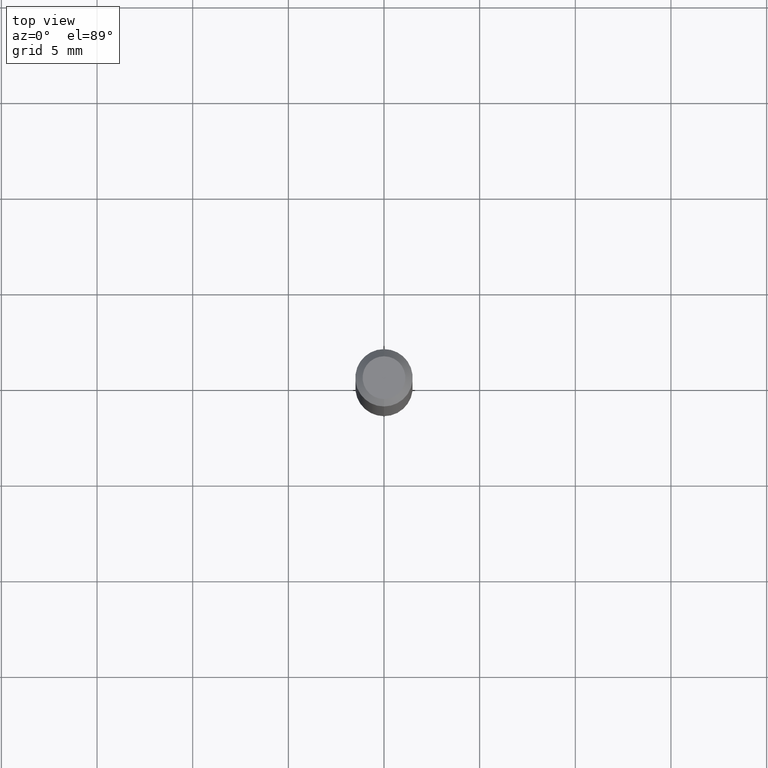
[diagram: clean part render]
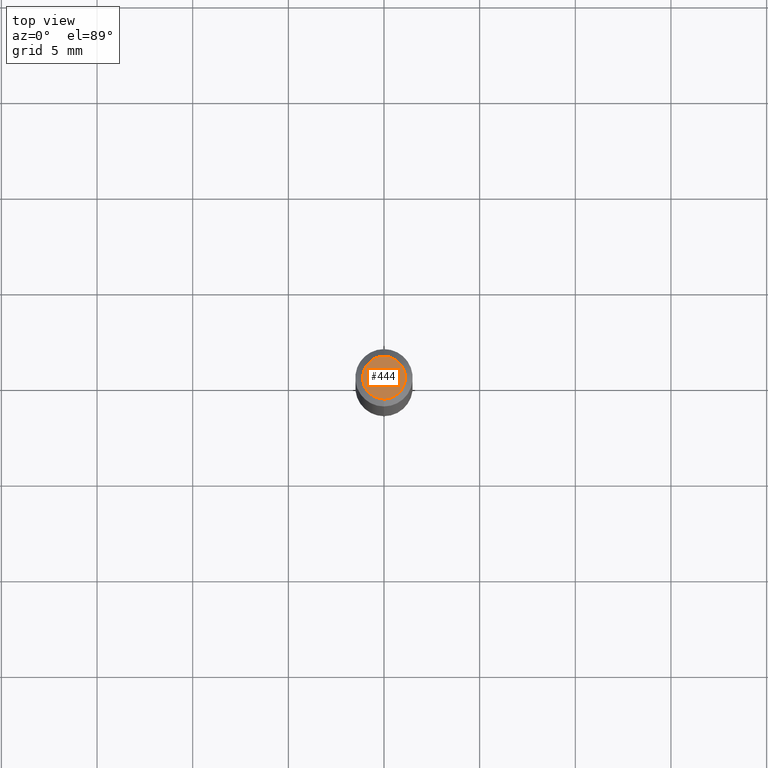
[diagram: same view with one face highlighted and labeled with its STEP entity id]
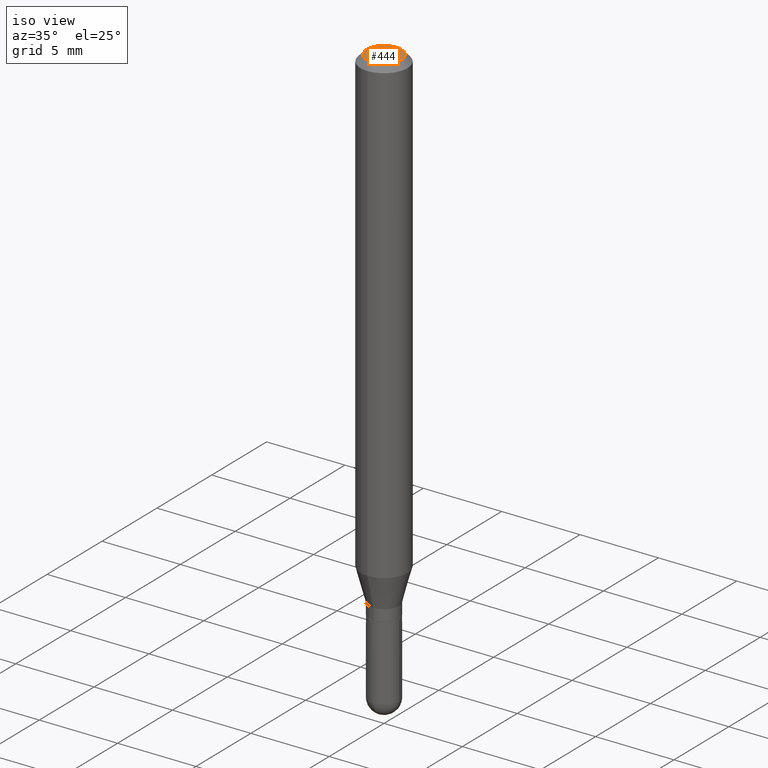
[diagram: same view with one face highlighted and labeled with its STEP entity id]
A machine part, top view. The second image highlights one B-rep face of the part: STEP entity #444.
A second angle (iso view) of the same face is appended — the face is thin or edge-on in the first view.
In plain terms, the highlighted planar face has unit normal (0, -0, -1).
Its self-contained STEP definition (entity closure, byte-faithful):
#10 = FACE_OUTER_BOUND ( 'NONE', #144, .T. ) ;
#26 = DIRECTION ( 'NONE',  ( -2.445466961897875281E-29, 3.491483979967474240E-15, 1.000000000000000000 ) ) ;
#40 = CARTESIAN_POINT ( 'NONE',  ( 5.835404209385290125E-46, -8.331423254187618082E-32, -2.386212653985951345E-17 ) ) ;
#60 = DIRECTION ( 'NONE',  ( -6.982962677686265133E-15, -1.000000000000000000, 3.491483979967474240E-15 ) ) ;
#61 = AXIS2_PLACEMENT_3D ( 'NONE', #462, #26, #60 ) ;
#124 = DIRECTION ( 'NONE',  ( 2.445466961897874720E-29, -3.491483979967474635E-15, -1.000000000000000000 ) ) ;
#144 = EDGE_LOOP ( 'NONE', ( #454, #273 ) ) ;
#177 = EDGE_CURVE ( 'NONE', #183, #431, #296, .T. ) ;
#183 = VERTEX_POINT ( 'NONE', #232 ) ;
#228 = AXIS2_PLACEMENT_3D ( 'NONE', #293, #124, #472 ) ;
#232 = CARTESIAN_POINT ( 'NONE',  ( -3.536586717851222218E-16, -0.04404999999999999888, 1.299377427777077181E-16 ) ) ;
#246 = CIRCLE ( 'NONE', #256, 0.04404999999999999888 ) ;
#256 = AXIS2_PLACEMENT_3D ( 'NONE', #40, #442, #329 ) ;
#273 = ORIENTED_EDGE ( 'NONE', *, *, #177, .T. ) ;
#293 = CARTESIAN_POINT ( 'NONE',  ( 3.075995059520799729E-16, 0.04404999999999999888, -1.657309325874969883E-16 ) ) ;
#296 = CIRCLE ( 'NONE', #61, 0.04404999999999999888 ) ;
#320 = PLANE ( 'NONE',  #228 ) ;
#329 = DIRECTION ( 'NONE',  ( -6.982962677686265133E-15, -1.000000000000000000, 3.491483979967474240E-15 ) ) ;
#369 = EDGE_CURVE ( 'NONE', #431, #183, #246, .T. ) ;
#370 = CARTESIAN_POINT ( 'NONE',  ( 3.599717260347271507E-16, 0.04404999999999999888, -1.776619958574267450E-16 ) ) ;
#431 = VERTEX_POINT ( 'NONE', #370 ) ;
#442 = DIRECTION ( 'NONE',  ( -2.445466961897875281E-29, 3.491483979967474240E-15, 1.000000000000000000 ) ) ;
#444 = ADVANCED_FACE ( 'NONE', ( #10 ), #320, .F. ) ;
#454 = ORIENTED_EDGE ( 'NONE', *, *, #369, .T. ) ;
#462 = CARTESIAN_POINT ( 'NONE',  ( 5.835404209385290125E-46, -8.331423254187618082E-32, -2.386212653985951345E-17 ) ) ;
#472 = DIRECTION ( 'NONE',  ( 6.982962677686265922E-15, 1.000000000000000000, -3.491483979967474635E-15 ) ) ;